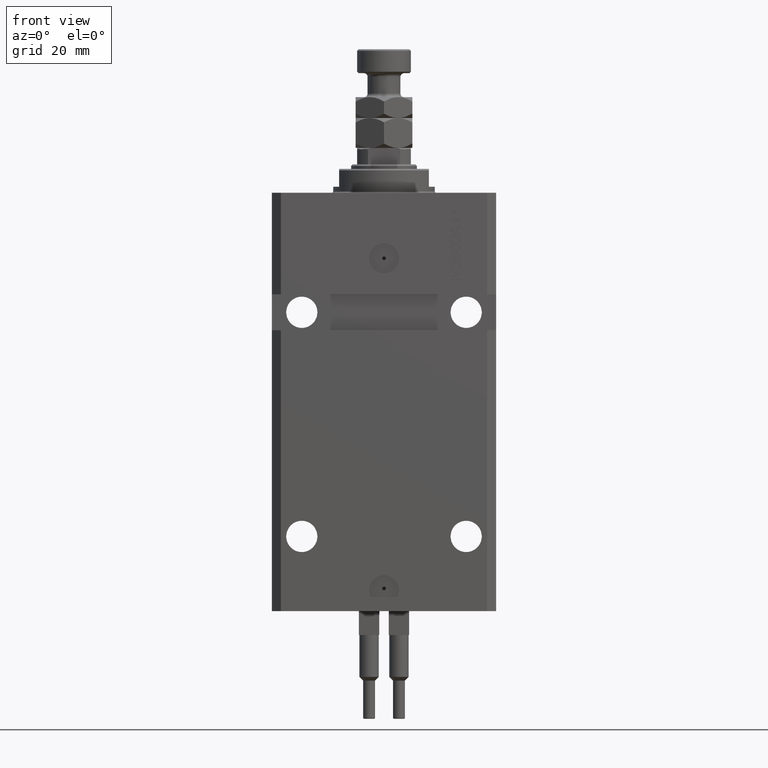
[diagram: clean part render]
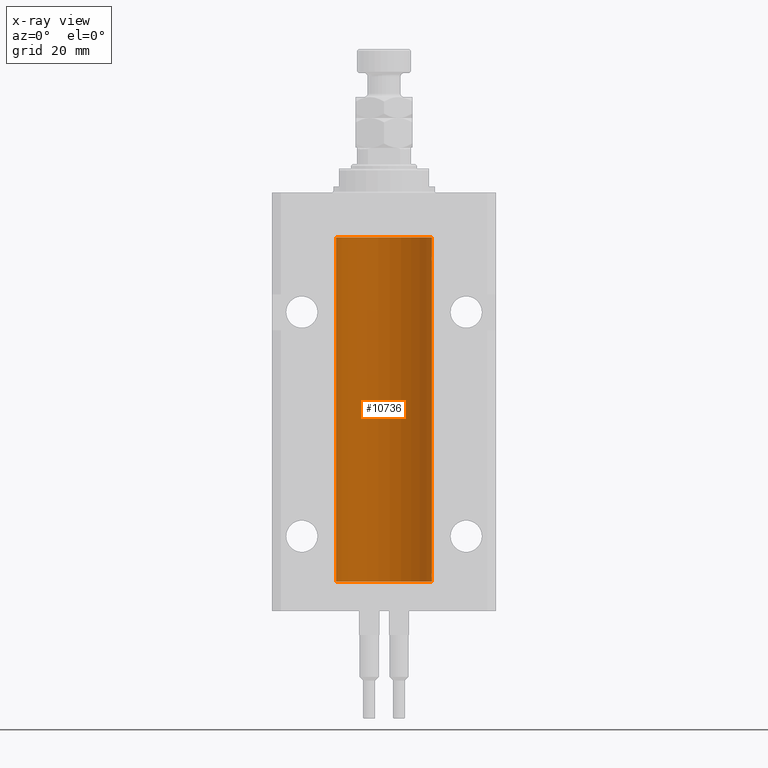
[diagram: x-ray — body ghosted, one internal face saturated and labeled with its STEP entity id]
A machine part, front view, then the same camera in x-ray: the body is ghosted and one INTERNAL B-rep face — a face not visible from any outside direction — is saturated and labeled: STEP entity #10736.
In plain terms, the highlighted cylindrical surface (partial cylindrical patch) has radius 16 mm, axis along (0, 0, 1).
Its self-contained STEP definition (entity closure, byte-faithful):
#38 = CYLINDRICAL_SURFACE ( 'NONE', #24746, 16.00000000000000000 ) ;
#59 = ORIENTED_EDGE ( 'NONE', *, *, #46155, .T. ) ;
#499 = VECTOR ( 'NONE', #32429, 1000.000000000000000 ) ;
#671 = ORIENTED_EDGE ( 'NONE', *, *, #4524, .T. ) ;
#1738 = CARTESIAN_POINT ( 'NONE',  ( 15.99934183755191341, 0.1636877470526788836, -22.60872690654067796 ) ) ;
#2297 = CIRCLE ( 'NONE', #30468, 16.00000000000000000 ) ;
#3088 = LINE ( 'NONE', #30051, #47521 ) ;
#3482 = CARTESIAN_POINT ( 'NONE',  ( 0.000000000000000000, 0.000000000000000000, -15.00000000000000000 ) ) ;
#4524 = EDGE_CURVE ( 'NONE', #12451, #15884, #47042, .T. ) ;
#5072 = ORIENTED_EDGE ( 'NONE', *, *, #14197, .T. ) ;
#5107 = ORIENTED_EDGE ( 'NONE', *, *, #19169, .T. ) ;
#8495 = VERTEX_POINT ( 'NONE', #41332 ) ;
#9219 = LINE ( 'NONE', #36206, #499 ) ;
#9369 = CARTESIAN_POINT ( 'NONE',  ( -16.00000000000000000, 1.959434878635765131E-15, -130.0999999999999943 ) ) ;
#10368 = CARTESIAN_POINT ( 'NONE',  ( 15.98778830858104172, 0.6249999999996183053, -21.91847885046212951 ) ) ;
#10736 = ADVANCED_FACE ( 'NONE', ( #38874 ), #38, .F. ) ;
#11641 = CARTESIAN_POINT ( 'NONE',  ( 16.00000000000000000, -7.378931128587136680E-16, -22.62500000000000000 ) ) ;
#11721 = B_SPLINE_CURVE_WITH_KNOTS ( 'NONE', 3,
 ( #11641, #39825, #1738, #20639, #38628, #24664, #36033, #47872 ),
 .UNSPECIFIED., .F., .F.,
 ( 4, 2, 2, 4 ),
 ( 1.864948331951035013E-18, 0.0002443331572174913110, 0.0004886663144349807789, 0.0009773326288699671956 ),
 .UNSPECIFIED. ) ;
#12451 = VERTEX_POINT ( 'NONE', #38505 ) ;
#13112 = EDGE_CURVE ( 'NONE', #46748, #28355, #2297, .T. ) ;
#13394 = CARTESIAN_POINT ( 'NONE',  ( 16.00000000000000000, 2.199125140786256469E-15, -128.6250000000000284 ) ) ;
#13646 = CARTESIAN_POINT ( 'NONE',  ( 15.99934183755190986, 0.1636877470527098033, -128.6087269065407384 ) ) ;
#13654 = VERTEX_POINT ( 'NONE', #37290 ) ;
#13812 = CIRCLE ( 'NONE', #48436, 16.00000000000000000 ) ;
#14197 = EDGE_CURVE ( 'NONE', #22370, #12451, #35239, .T. ) ;
#14401 = CARTESIAN_POINT ( 'NONE',  ( 15.99999999999999289, 0.1631343969470014366, -21.37500000000020606 ) ) ;
#14763 = CARTESIAN_POINT ( 'NONE',  ( 15.98844460043492077, 0.6087869699337552509, -127.8365745496755608 ) ) ;
#15006 = CARTESIAN_POINT ( 'NONE',  ( 15.99228275317787151, 0.5002975944204681724, -127.6164201457017668 ) ) ;
#15180 = DIRECTION ( 'NONE',  ( 0.000000000000000000, 0.000000000000000000, 1.000000000000000000 ) ) ;
#15285 = ORIENTED_EDGE ( 'NONE', *, *, #13112, .F. ) ;
#15414 = DIRECTION ( 'NONE',  ( 1.000000000000000000, 0.000000000000000000, 0.000000000000000000 ) ) ;
#15884 = VERTEX_POINT ( 'NONE', #41025 ) ;
#17581 = CARTESIAN_POINT ( 'NONE',  ( 16.00000000000000000, 2.199125140786256469E-15, -128.6250000000000284 ) ) ;
#17593 = ORIENTED_EDGE ( 'NONE', *, *, #27829, .F. ) ;
#17683 = CARTESIAN_POINT ( 'NONE',  ( 15.99070366873610993, 0.5574063959867617823, -128.3263943683755315 ) ) ;
#18185 = CARTESIAN_POINT ( 'NONE',  ( 15.99228275317787507, 0.5002975944204003378, -21.61642014570181303 ) ) ;
#19169 = EDGE_CURVE ( 'NONE', #41013, #24654, #13812, .T. ) ;
#20182 = CARTESIAN_POINT ( 'NONE',  ( 16.00000000000000000, 0.000000000000000000, -130.0999999999999943 ) ) ;
#20639 = CARTESIAN_POINT ( 'NONE',  ( 15.99707608081895494, 0.3151028052309814975, -22.54594170697728117 ) ) ;
#20709 = CARTESIAN_POINT ( 'NONE',  ( 16.00000000000000355, 0.08261762387943334673, -128.6250000000000000 ) ) ;
#21162 = VECTOR ( 'NONE', #25037, 1000.000000000000000 ) ;
#21750 = CARTESIAN_POINT ( 'NONE',  ( 16.00000000000000000, 0.000000000000000000, -130.0999999999999943 ) ) ;
#22370 = VERTEX_POINT ( 'NONE', #17581 ) ;
#22817 = CARTESIAN_POINT ( 'NONE',  ( 15.98778830858103817, 0.6249999999997200018, -127.9184788504620940 ) ) ;
#23121 = ORIENTED_EDGE ( 'NONE', *, *, #28482, .T. ) ;
#23319 = LINE ( 'NONE', #46531, #39650 ) ;
#24337 = CARTESIAN_POINT ( 'NONE',  ( 15.98778830858070954, 0.6250000000079481977, -21.99999999999914735 ) ) ;
#24654 = VERTEX_POINT ( 'NONE', #35638 ) ;
#24664 = CARTESIAN_POINT ( 'NONE',  ( 15.99070366873610638, 0.5574063959866681905, -22.32639436837549596 ) ) ;
#24746 = AXIS2_PLACEMENT_3D ( 'NONE', #31555, #27004, #15414 ) ;
#25037 = DIRECTION ( 'NONE',  ( -0.000000000000000000, -0.000000000000000000, 1.000000000000000000 ) ) ;
#25212 = VERTEX_POINT ( 'NONE', #24337 ) ;
#25737 = CARTESIAN_POINT ( 'NONE',  ( 15.99070695999104252, 0.5461439696926362330, -21.68526802364053552 ) ) ;
#25767 = DIRECTION ( 'NONE',  ( -0.000000000000000000, -0.000000000000000000, 1.000000000000000000 ) ) ;
#25915 = DIRECTION ( 'NONE',  ( 0.000000000000000000, 0.000000000000000000, 1.000000000000000000 ) ) ;
#26602 = CARTESIAN_POINT ( 'NONE',  ( 15.99999999999998934, 0.1631343969470183675, -127.3750000000001847 ) ) ;
#26856 = EDGE_LOOP ( 'NONE', ( #17593, #15285, #59, #5072, #671, #46740, #37856, #23121, #29828, #5107 ) ) ;
#27004 = DIRECTION ( 'NONE',  ( -0.000000000000000000, -0.000000000000000000, 1.000000000000000000 ) ) ;
#27271 = CARTESIAN_POINT ( 'NONE',  ( 0.000000000000000000, 0.000000000000000000, -130.0999999999999943 ) ) ;
#27517 = DIRECTION ( 'NONE',  ( 1.000000000000000000, 0.000000000000000000, 0.000000000000000000 ) ) ;
#27829 = EDGE_CURVE ( 'NONE', #28355, #24654, #23319, .T. ) ;
#28160 = B_SPLINE_CURVE_WITH_KNOTS ( 'NONE', 3,
 ( #44917, #10368, #41153, #25737, #18185, #48945, #14401, #29767 ),
 .UNSPECIFIED., .F., .F.,
 ( 4, 2, 2, 4 ),
 ( 0.0009773326288699671956, 0.001221554802188560499, 0.001465776975507153803, 0.001954221322144333254 ),
 .UNSPECIFIED. ) ;
#28355 = VERTEX_POINT ( 'NONE', #9369 ) ;
#28482 = EDGE_CURVE ( 'NONE', #25212, #8495, #28160, .T. ) ;
#28519 = CARTESIAN_POINT ( 'NONE',  ( 15.99548458234361092, 0.3844468804816240093, -128.4994778669635025 ) ) ;
#29015 = CARTESIAN_POINT ( 'NONE',  ( 15.98778830858070954, 0.6250000000080528917, -127.9999999999991473 ) ) ;
#29767 = CARTESIAN_POINT ( 'NONE',  ( 16.00000000000013145, 3.665532680419208314E-13, -21.37499999999658229 ) ) ;
#29828 = ORIENTED_EDGE ( 'NONE', *, *, #39877, .T. ) ;
#30051 = CARTESIAN_POINT ( 'NONE',  ( 16.00000000000000000, 0.000000000000000000, -130.0999999999999943 ) ) ;
#30468 = AXIS2_PLACEMENT_3D ( 'NONE', #27271, #15180, #27517 ) ;
#30629 = CARTESIAN_POINT ( 'NONE',  ( 15.99070695999103542, 0.5461439696927218312, -127.6852680236405035 ) ) ;
#30796 = EDGE_CURVE ( 'NONE', #13654, #25212, #11721, .T. ) ;
#31503 = EDGE_CURVE ( 'NONE', #15884, #13654, #37404, .T. ) ;
#31555 = CARTESIAN_POINT ( 'NONE',  ( 0.000000000000000000, 0.000000000000000000, -130.0999999999999943 ) ) ;
#32075 = CARTESIAN_POINT ( 'NONE',  ( 15.98778830858101152, 0.6250000000002303713, -128.1631163917302274 ) ) ;
#32325 = CARTESIAN_POINT ( 'NONE',  ( 15.99707608081894783, 0.3151028052310348992, -128.5459417069773451 ) ) ;
#32429 = DIRECTION ( 'NONE',  ( -0.000000000000000000, -0.000000000000000000, 1.000000000000000000 ) ) ;
#35239 = B_SPLINE_CURVE_WITH_KNOTS ( 'NONE', 3,
 ( #13394, #20709, #13646, #32325, #28519, #17683, #32075, #29015 ),
 .UNSPECIFIED., .F., .F.,
 ( 4, 2, 2, 4 ),
 ( 2.137109855960538111E-18, 0.0002443331572175100135, 0.0004886663144350179670, 0.0009773326288700927462 ),
 .UNSPECIFIED. ) ;
#35638 = CARTESIAN_POINT ( 'NONE',  ( -16.00000000000000000, 1.959434878635765131E-15, -15.00000000000000000 ) ) ;
#36033 = CARTESIAN_POINT ( 'NONE',  ( 15.98778830858101152, 0.6250000000001202372, -22.16311639173018477 ) ) ;
#36092 = CARTESIAN_POINT ( 'NONE',  ( 16.00000000000000000, 0.000000000000000000, -15.00000000000000000 ) ) ;
#36206 = CARTESIAN_POINT ( 'NONE',  ( 16.00000000000000000, 0.000000000000000000, -130.0999999999999943 ) ) ;
#37290 = CARTESIAN_POINT ( 'NONE',  ( 16.00000000000000000, -7.378931128587136680E-16, -22.62500000000000000 ) ) ;
#37404 = LINE ( 'NONE', #21750, #21162 ) ;
#37856 = ORIENTED_EDGE ( 'NONE', *, *, #30796, .T. ) ;
#38212 = CARTESIAN_POINT ( 'NONE',  ( 16.00000000000013145, 3.665533114689029904E-13, -127.3749999999965752 ) ) ;
#38505 = CARTESIAN_POINT ( 'NONE',  ( 15.98778830858070954, 0.6250000000080528917, -127.9999999999991473 ) ) ;
#38628 = CARTESIAN_POINT ( 'NONE',  ( 15.99548458234361803, 0.3844468804815583396, -22.49947786696350960 ) ) ;
#38874 = FACE_OUTER_BOUND ( 'NONE', #26856, .T. ) ;
#39650 = VECTOR ( 'NONE', #49803, 1000.000000000000000 ) ;
#39825 = CARTESIAN_POINT ( 'NONE',  ( 16.00000000000000000, 0.08261762387942135633, -22.62499999999996803 ) ) ;
#39877 = EDGE_CURVE ( 'NONE', #8495, #41013, #9219, .T. ) ;
#41013 = VERTEX_POINT ( 'NONE', #36092 ) ;
#41025 = CARTESIAN_POINT ( 'NONE',  ( 16.00000000000013145, 3.665533114689029904E-13, -127.3749999999965752 ) ) ;
#41153 = CARTESIAN_POINT ( 'NONE',  ( 15.98844460043492077, 0.6087869699336542206, -21.83657454967558564 ) ) ;
#41332 = CARTESIAN_POINT ( 'NONE',  ( 16.00000000000013145, 3.665532680419208314E-13, -21.37499999999658229 ) ) ;
#44847 = DIRECTION ( 'NONE',  ( 1.000000000000000000, 0.000000000000000000, 0.000000000000000000 ) ) ;
#44917 = CARTESIAN_POINT ( 'NONE',  ( 15.98778830858070954, 0.6250000000079481977, -21.99999999999914735 ) ) ;
#45779 = CARTESIAN_POINT ( 'NONE',  ( 15.99711856062700477, 0.3252985083514177145, -127.4414029798771395 ) ) ;
#46155 = EDGE_CURVE ( 'NONE', #46748, #22370, #3088, .T. ) ;
#46531 = CARTESIAN_POINT ( 'NONE',  ( -16.00000000000000000, 1.959434878635765131E-15, -130.0999999999999943 ) ) ;
#46740 = ORIENTED_EDGE ( 'NONE', *, *, #31503, .T. ) ;
#46748 = VERTEX_POINT ( 'NONE', #20182 ) ;
#47042 = B_SPLINE_CURVE_WITH_KNOTS ( 'NONE', 3,
 ( #49545, #22817, #14763, #30629, #15006, #45779, #26602, #38212 ),
 .UNSPECIFIED., .F., .F.,
 ( 4, 2, 2, 4 ),
 ( 0.0009773326288700927462, 0.001221554802188709252, 0.001465776975507325757, 0.001954221322144558768 ),
 .UNSPECIFIED. ) ;
#47521 = VECTOR ( 'NONE', #25767, 1000.000000000000000 ) ;
#47872 = CARTESIAN_POINT ( 'NONE',  ( 15.98778830858070954, 0.6250000000079481977, -21.99999999999914735 ) ) ;
#48436 = AXIS2_PLACEMENT_3D ( 'NONE', #3482, #25915, #44847 ) ;
#48945 = CARTESIAN_POINT ( 'NONE',  ( 15.99711856062700122, 0.3252985083513916242, -21.44140297987714661 ) ) ;
#49545 = CARTESIAN_POINT ( 'NONE',  ( 15.98778830858070954, 0.6250000000080528917, -127.9999999999991473 ) ) ;
#49803 = DIRECTION ( 'NONE',  ( -0.000000000000000000, -0.000000000000000000, 1.000000000000000000 ) ) ;